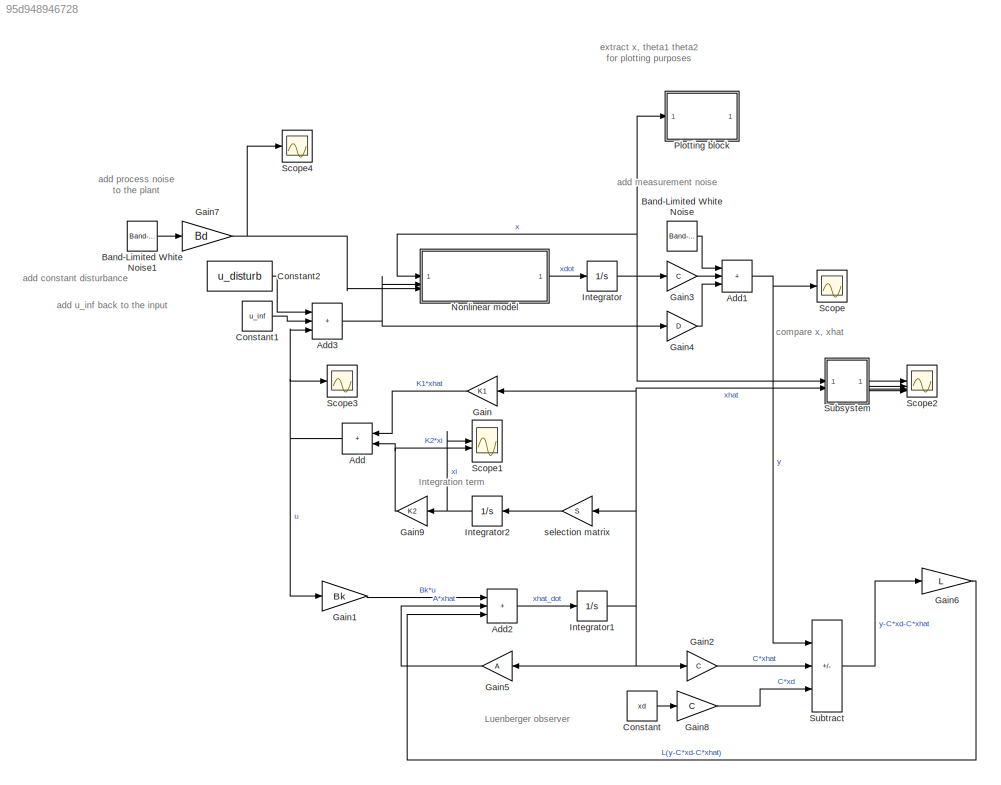
MODEL slx_95d948946728
KIND model
CONFIG AbsTol = auto
CONFIG EnableMultiTasking = off
CONFIG FixedStep = auto
CONFIG MaxStep = auto
CONFIG MinStep = auto
CONFIG RelTol = 1e-3
CONFIG SampleTimeConstraint = Unconstrained
CONFIG SolverName = VariableStepAuto
CONFIG StartTime = 0.0
CONFIG StopTime = 70
BLOCK [Sum] Add
  IconShape = rectangular
BLOCK [Sum] Add1
  IconShape = rectangular
  Inputs = +++
BLOCK [Sum] Add2
  IconShape = rectangular
  Inputs = +++
BLOCK [Sum] Add3
  IconShape = rectangular
  Inputs = +++
BLOCK [Reference] Band-Limited White Noise  REF=simulink/Sources/Band-Limited
White Noise
  SourceBlock = simulink/Sources/Band-Limited\nWhite Noise
  SourceType = Band-Limited White Noise.
BLOCK [Reference] Band-Limited White Noise1  REF=simulink/Sources/Band-Limited
White Noise
  SourceBlock = simulink/Sources/Band-Limited\nWhite Noise
  SourceType = Band-Limited White Noise.
BLOCK [Constant] Constant
  Value = xd
BLOCK [Constant] Constant1
  Value = u_inf
BLOCK [Constant] Constant2
  Value = u_disturb
BLOCK [Gain] Gain
  Gain = K1
  Multiplication = Matrix(K*u)
BLOCK [Gain] Gain1
  Gain = Bk
  Multiplication = Matrix(K*u)
BLOCK [Gain] Gain2
  Gain = C
  Multiplication = Matrix(K*u)
BLOCK [Gain] Gain3
  Gain = C
  Multiplication = Matrix(K*u)
BLOCK [Gain] Gain4
  Gain = D
  Multiplication = Matrix(K*u)
BLOCK [Gain] Gain5
  Gain = A
  Multiplication = Matrix(K*u)
BLOCK [Gain] Gain6
  Gain = L
  Multiplication = Matrix(K*u)
BLOCK [Gain] Gain7
  Gain = Bd
  Multiplication = Matrix(K*u)
BLOCK [Gain] Gain8
  Gain = C
  Multiplication = Matrix(K*u)
BLOCK [Gain] Gain9
  Gain = K2
  Multiplication = Matrix(K*u)
BLOCK [Integrator] Integrator
  InitialCondition = init_state
BLOCK [Integrator] Integrator1
  InitialCondition = [0,0,0,0,0,0]'
BLOCK [Integrator] Integrator2
  InitialCondition = zeros(nc,1)
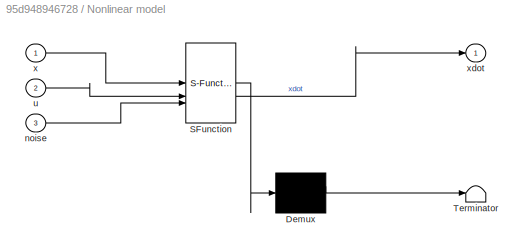
BLOCK [SubSystem] Nonlinear model
  ErrorFcn = Stateflow.Translate.translate
  LibrarySourceBlock = simulink/User-Defined\nFunctions/MATLAB Function
  PermitHierarchicalResolution = ExplicitOnly
  SFBlockType = MATLAB Function
  TreatAsAtomicUnit = on
BLOCK [Demux] Nonlinear model/ Demux 
  Outputs = 1
BLOCK [S-Function] Nonlinear model/ SFunction 
  EnableBusSupport = on
  FunctionName = sf_sfun
  Parameters = param
  PortCounts = [3 2]
  SFcnIsStateOwnerBlock = off
  SFunctionDeploymentMode = off
  Tag = Stateflow S-Function 2
BLOCK [Terminator] Nonlinear model/ Terminator 
BLOCK [Inport] Nonlinear model/noise
  Port = 3
BLOCK [Inport] Nonlinear model/u
  Port = 2
BLOCK [Inport] Nonlinear model/x
BLOCK [Outport] Nonlinear model/xdot
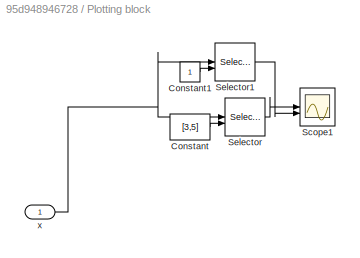
BLOCK [SubSystem] Plotting block
BLOCK [Constant] Plotting block/Constant
  Value = [3,5]
BLOCK [Constant] Plotting block/Constant1
BLOCK [Scope] Plotting block/Scope1
  Floating = off
  NumInputPorts = 2
  ScopeSpecificationString = Simulink.scopes.TimeScopeBlockCfg('CurrentConfiguration', extmgr.ConfigurationSet(extmgr.Configuration('Core','General UI',true),extmgr.Configuration('Core','Source UI',true),extmgr.Configuration('Sources','WiredSimulink',true,'DataLoggingVariableName','ScopeData1'),extmgr.Configuration('Visuals','Time Domain',true,'SerializedDisplays',{struct('MinYLimReal','-0.68021','MaxYLimReal','0.88527','YLab...<+2131ch>
BLOCK [Selector] Plotting block/Selector
  IndexOptions = Index vector (port)
  Indices = [1 3]
  InputPortWidth = 6
  OutputSizes = 1
BLOCK [Selector] Plotting block/Selector1
  IndexOptions = Index vector (port)
  Indices = [1 3]
  InputPortWidth = 6
  OutputSizes = 1
BLOCK [Inport] Plotting block/x
BLOCK [Scope] Scope
  Floating = off
  NumInputPorts = 1
  ScopeSpecificationString = Simulink.scopes.TimeScopeBlockCfg('CurrentConfiguration', extmgr.ConfigurationSet(extmgr.Configuration('Core','General UI',true),extmgr.Configuration('Core','Source UI',true),extmgr.Configuration('Sources','WiredSimulink',true,'DataLoggingVariableName','ScopeData1'),extmgr.Configuration('Visuals','Time Domain',true,'SerializedDisplays',{struct('MinYLimReal','-2.19014','MaxYLimReal','15.29144','YLa...<+1407ch>
BLOCK [Scope] Scope1
  Floating = off
  NumInputPorts = 2
  ScopeSpecificationString = Simulink.scopes.TimeScopeBlockCfg('CurrentConfiguration', extmgr.ConfigurationSet(extmgr.Configuration('Core','General UI',true),extmgr.Configuration('Core','Source UI',true),extmgr.Configuration('Sources','WiredSimulink',true,'DataLoggingVariableName','ScopeData1'),extmgr.Configuration('Visuals','Time Domain',true,'SerializedDisplays',{struct('MinYLimReal','-22.49484','MaxYLimReal','2.49943','YLa...<+2019ch>
BLOCK [Scope] Scope2
  Floating = off
  NumInputPorts = 4
  ScopeSpecificationString = Simulink.scopes.TimeScopeBlockCfg('CurrentConfiguration', extmgr.ConfigurationSet(extmgr.Configuration('Core','General UI',true),extmgr.Configuration('Core','Source UI',true),extmgr.Configuration('Sources','WiredSimulink',true,'DataLoggingVariableName','ScopeData2'),extmgr.Configuration('Visuals','Time Domain',true,'SerializedDisplays',{struct('MinYLimReal','-0.81393','MaxYLimReal','1.0674','YLabe...<+3463ch>
BLOCK [Scope] Scope3
  Floating = off
  NumInputPorts = 1
  ScopeSpecificationString = Simulink.scopes.TimeScopeBlockCfg('CurrentConfiguration', extmgr.ConfigurationSet(extmgr.Configuration('Core','General UI',true),extmgr.Configuration('Core','Source UI',true),extmgr.Configuration('Sources','WiredSimulink',true,'DataLoggingVariableName','ScopeData3'),extmgr.Configuration('Visuals','Time Domain',true,'SerializedDisplays',{struct('MinYLimReal','-3062.81899','MaxYLimReal','5144.19259'...<+1456ch>
BLOCK [Scope] Scope4
  Floating = off
  NumInputPorts = 1
  ScopeSpecificationString = Simulink.scopes.TimeScopeBlockCfg('CurrentConfiguration', extmgr.ConfigurationSet(extmgr.Configuration('Core','General UI',true),extmgr.Configuration('Core','Source UI',true),extmgr.Configuration('Sources','WiredSimulink',true,'DataLoggingVariableName','ScopeData2'),extmgr.Configuration('Visuals','Time Domain',true,'SerializedDisplays',{struct('MinYLimReal','-0.38172','MaxYLimReal','0.37214','YLab...<+1491ch>
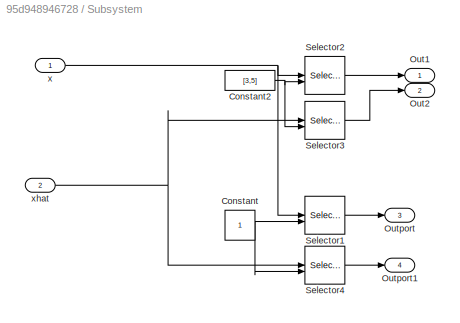
BLOCK [SubSystem] Subsystem
BLOCK [Constant] Subsystem/Constant
BLOCK [Constant] Subsystem/Constant2
  Value = [3,5]
BLOCK [Outport] Subsystem/Out1
BLOCK [Outport] Subsystem/Out2
  Port = 2
BLOCK [Outport] Subsystem/Outport
  Port = 3
BLOCK [Outport] Subsystem/Outport1
  Port = 4
BLOCK [Selector] Subsystem/Selector1
  IndexOptions = Index vector (port)
  Indices = [1 3]
  InputPortWidth = 6
  OutputSizes = 1
BLOCK [Selector] Subsystem/Selector2
  IndexOptions = Index vector (port)
  Indices = [1 3]
  InputPortWidth = 6
  OutputSizes = 1
BLOCK [Selector] Subsystem/Selector3
  IndexOptions = Index vector (port)
  Indices = [1 3]
  InputPortWidth = 6
  OutputSizes = 1
BLOCK [Selector] Subsystem/Selector4
  IndexOptions = Index vector (port)
  Indices = [1 3]
  InputPortWidth = 6
  OutputSizes = 1
BLOCK [Inport] Subsystem/x
BLOCK [Inport] Subsystem/xhat
  Port = 2
BLOCK [Sum] Subtract
  IconShape = rectangular
  Inputs = +--
BLOCK [Gain] selection matrix
  Gain = S
  Multiplication = Matrix(K*u)
ANNOTATION (root): Integration term
ANNOTATION (root): Luenberger observer
ANNOTATION (root): add constant disturbance
ANNOTATION (root): add measurement noise
ANNOTATION (root): add process noise to the plant
ANNOTATION (root): add u_inf back to the input
ANNOTATION (root): compare x, xhat
ANNOTATION (root): extract x, theta1 theta2 for plotting purposes
NET Add1:1 -> Scope:1, Subtract:1
LINE Add2:1 -> Integrator1:1
NET Add3:1 -> Gain4:1, Nonlinear model:2
NET Add:1 -> Add3:3, Gain1:1, Scope3:1
LINE Band-Limited White Noise1:1 -> Gain7:1
LINE Band-Limited White Noise:1 -> Add1:1
LINE Constant1:1 -> Add3:2
LINE Constant2:1 -> Add3:1
LINE Constant:1 -> Gain8:1
LINE Gain1:1 -> Add2:1
LINE Gain2:1 -> Subtract:2
LINE Gain3:1 -> Add1:2
LINE Gain4:1 -> Add1:3
LINE Gain5:1 -> Add2:2
LINE Gain6:1 -> Add2:3
NET Gain7:1 -> Nonlinear model:3, Scope4:1
LINE Gain8:1 -> Subtract:3
NET Gain9:1 -> Add:2, Scope1:2
LINE Gain:1 -> Add:1
NET Integrator1:1 -> Gain2:1, Gain5:1, Gain:1, Subsystem:2, selection matrix:1
NET Integrator2:1 -> Gain9:1, Scope1:1
NET Integrator:1 -> Gain3:1, Nonlinear model:1, Plotting block:1, Subsystem:1
LINE Nonlinear model:1 -> Integrator:1
LINE Plotting block/Constant1:1 -> Plotting block/Selector1:2
LINE Plotting block/Constant:1 -> Plotting block/Selector:2
LINE Plotting block/Selector1:1 -> Plotting block/Scope1:2
LINE Plotting block/Selector:1 -> Plotting block/Scope1:1
NET Plotting block/x:1 -> Plotting block/Selector1:1, Plotting block/Selector:1
NET Subsystem/Constant2:1 -> Subsystem/Selector2:2, Subsystem/Selector3:2
NET Subsystem/Constant:1 -> Subsystem/Selector1:2, Subsystem/Selector4:2
LINE Subsystem/Selector1:1 -> Subsystem/Outport:1
LINE Subsystem/Selector2:1 -> Subsystem/Out1:1
LINE Subsystem/Selector3:1 -> Subsystem/Out2:1
LINE Subsystem/Selector4:1 -> Subsystem/Outport1:1
NET Subsystem/x:1 -> Subsystem/Selector1:1, Subsystem/Selector2:1
NET Subsystem/xhat:1 -> Subsystem/Selector3:1, Subsystem/Selector4:1
LINE Subsystem:1 -> Scope2:1
LINE Subsystem:2 -> Scope2:2
LINE Subsystem:3 -> Scope2:3
LINE Subsystem:4 -> Scope2:4
LINE Subtract:1 -> Gain6:1
LINE selection matrix:1 -> Integrator2:1
note: NET lines group one-source signal fan-out (src -> all destinations, sorted); 1:1 wires keep LINE
CHART Nonlinear model states=1 transitions=1
  STATE_LABEL 'eML_blk_kernel()'
  STATE_LABEL 'SCRIPT:\nfunction xdot = nonlinear_mdl(x,u,noise,param)\n    % implements the original dyanmics model\n    M = param.M;\n    m1 = param.m1;\n    m2 = param.m2;\n    l1 = param.l1;\n    l2 = param.l2;\n    g = param.g;\n    x1 = x(1);\n    x2 = x(2);\n    x3 = x(3);\n    x4 = x(4);\n    x5 = x(5);\n    x6 = x(6);\n    xdot = zeros(6,1);\n    xdot(1) = x2;\n    xdot(2) = 1/(M + m1*sin(x3)^2 + m2*sin(x5)^2)*...\n     ...<+602ch>'
CHART  states=0 transitions=0
